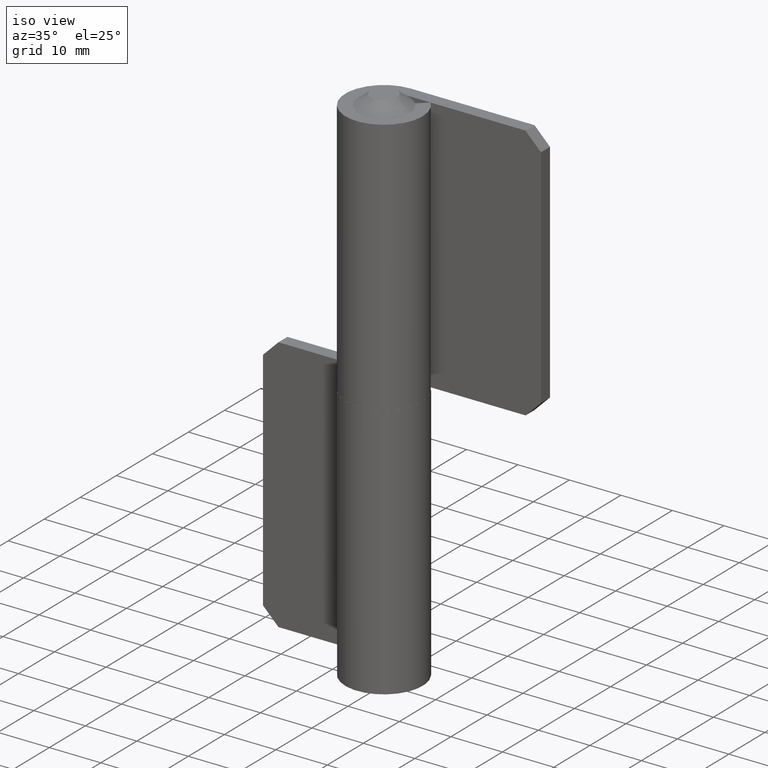
[diagram: clean part render]
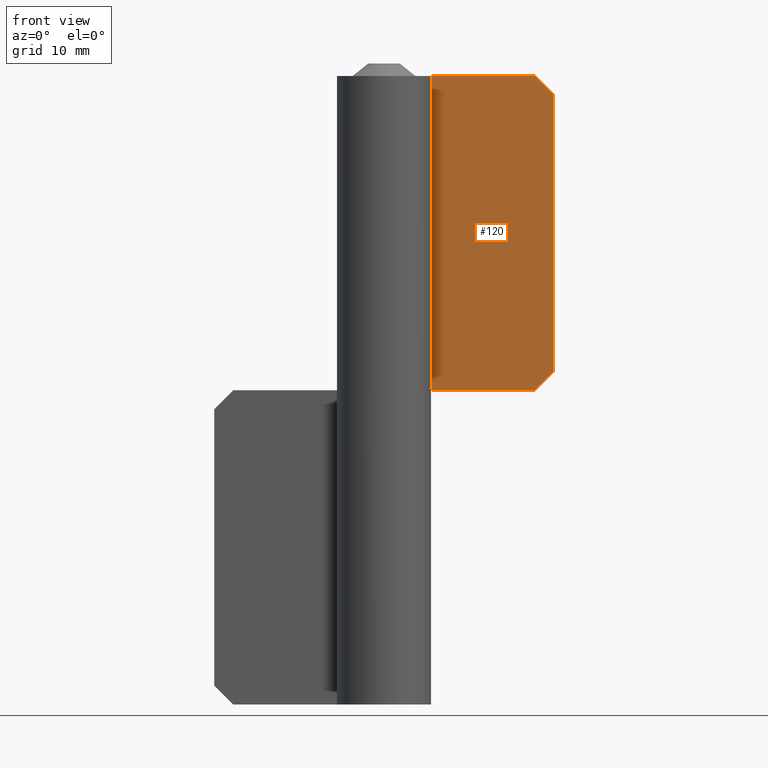
[diagram: tour spotlight — one face highlighted and labeled with its STEP entity id]
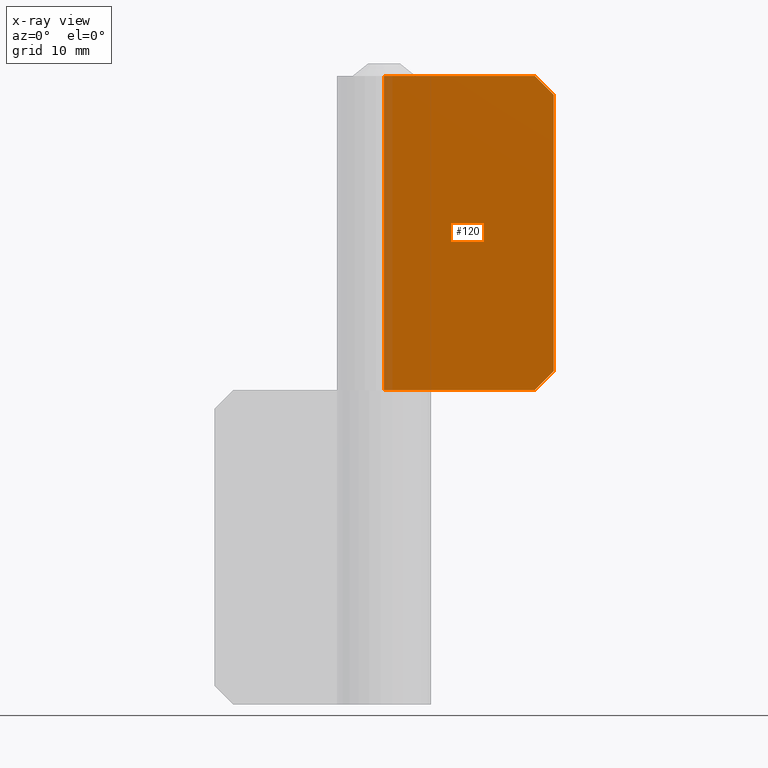
[diagram: x-ray of the same camera — body ghosted, this tour face saturated]
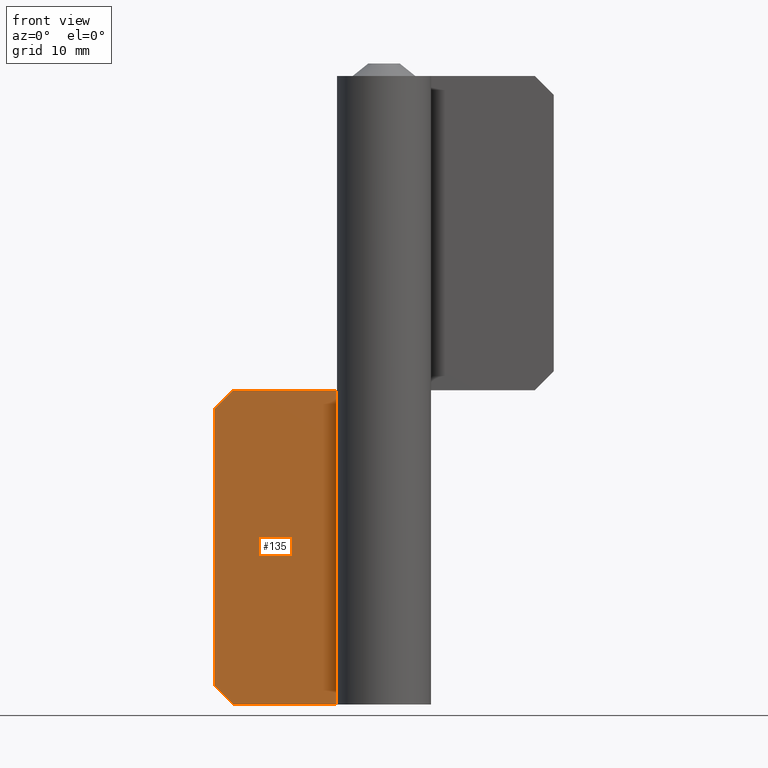
[diagram: tour spotlight — one face highlighted and labeled with its STEP entity id]
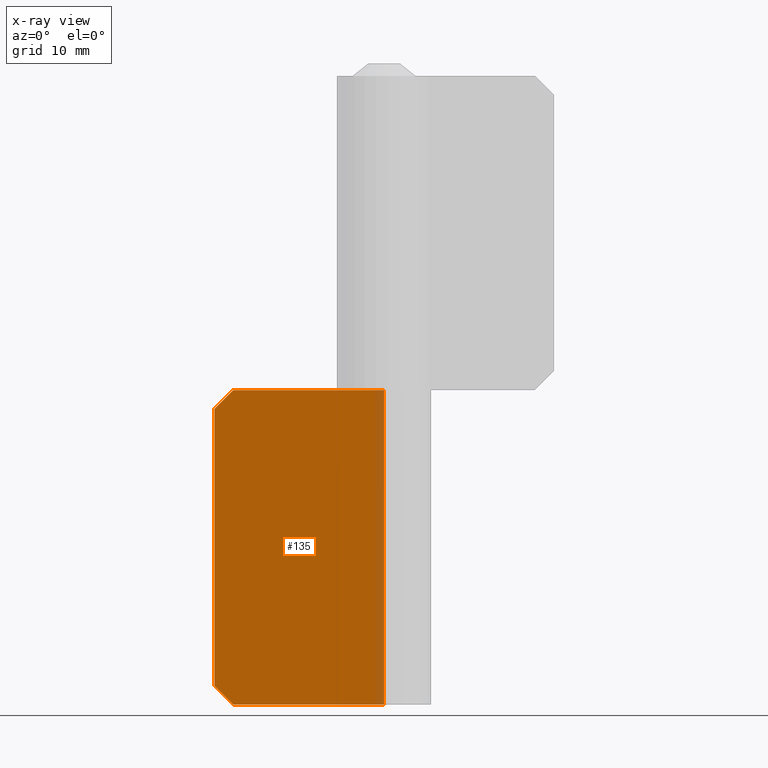
[diagram: x-ray of the same camera — body ghosted, this tour face saturated]
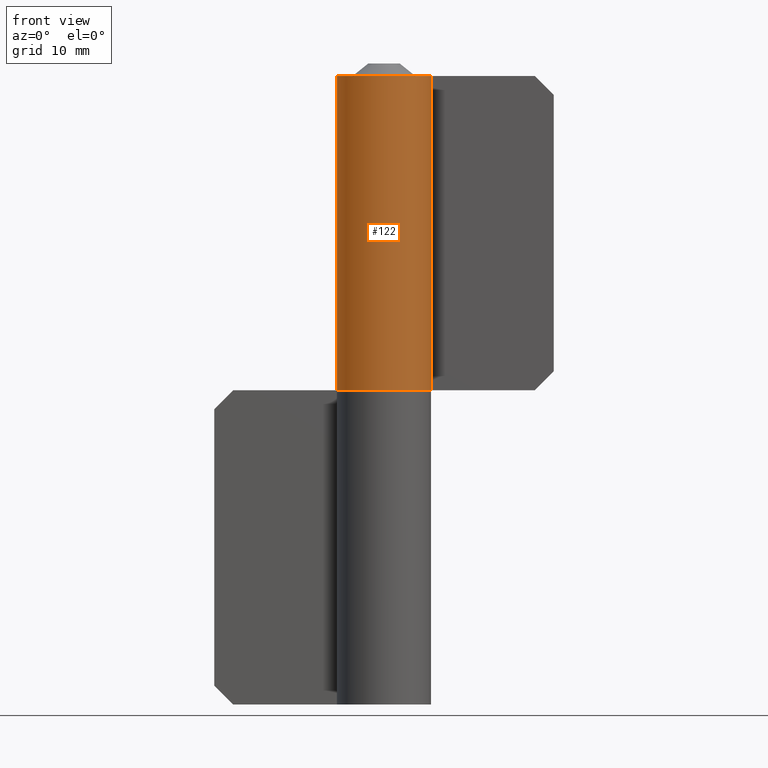
[diagram: tour spotlight — one face highlighted and labeled with its STEP entity id]
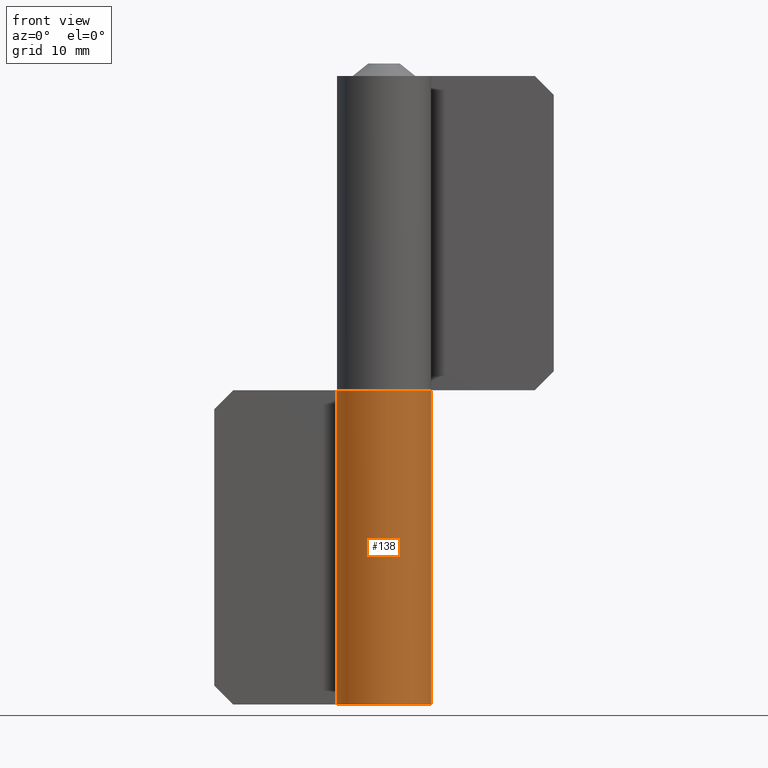
[diagram: tour spotlight — one face highlighted and labeled with its STEP entity id]
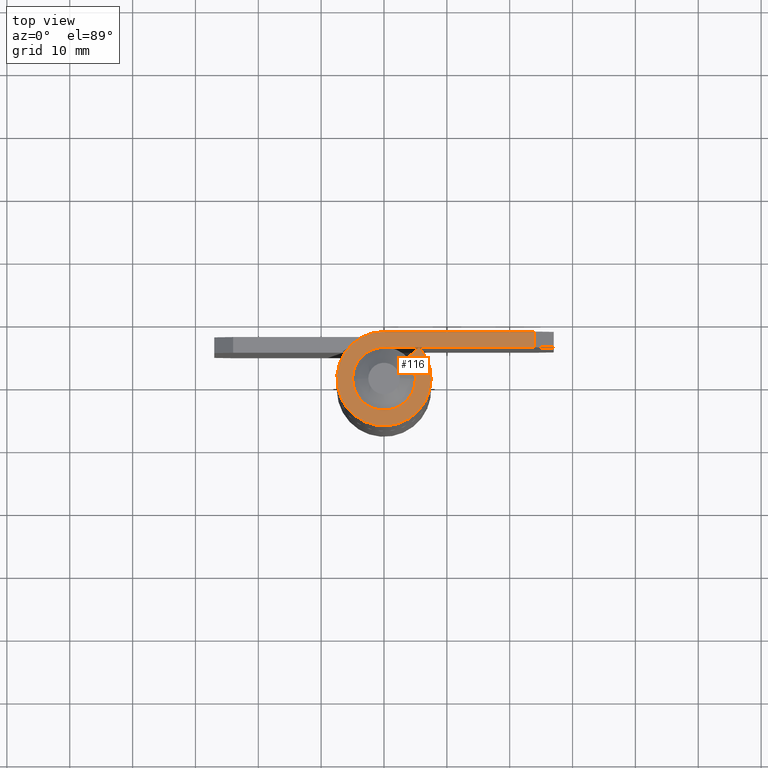
[diagram: tour spotlight — one face highlighted and labeled with its STEP entity id]
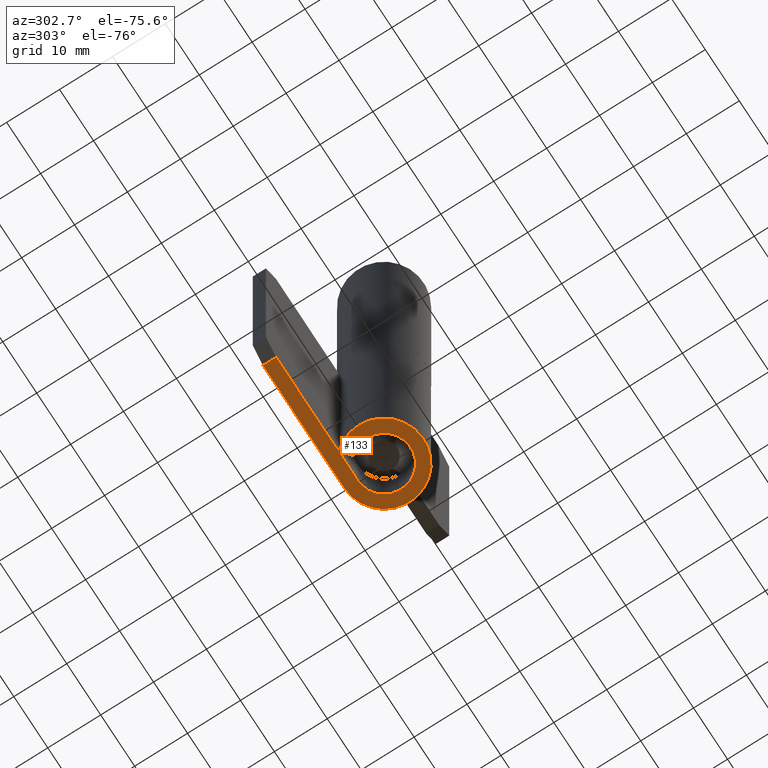
[diagram: tour spotlight — one face highlighted and labeled with its STEP entity id]
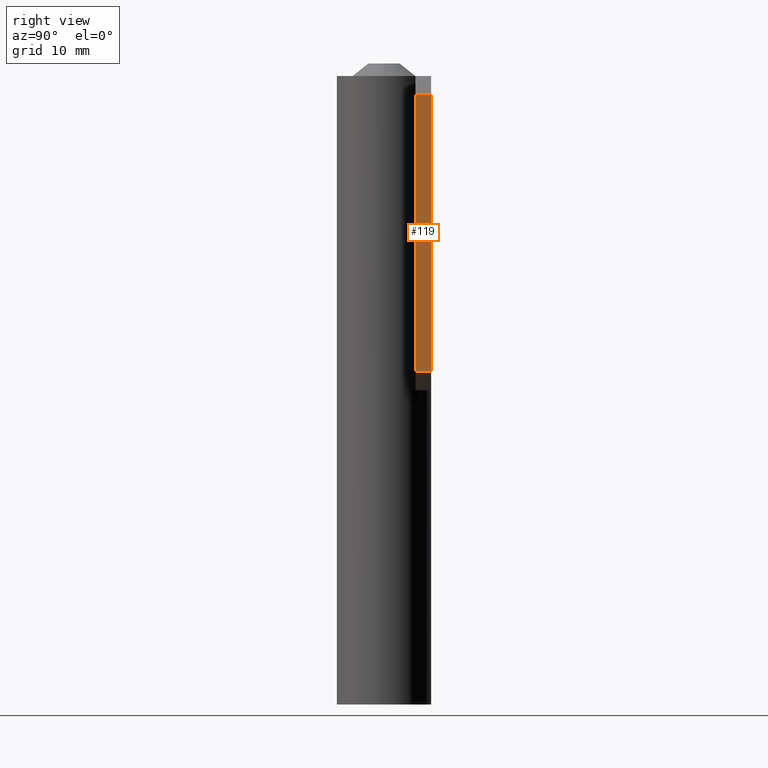
[diagram: tour spotlight — one face highlighted and labeled with its STEP entity id]
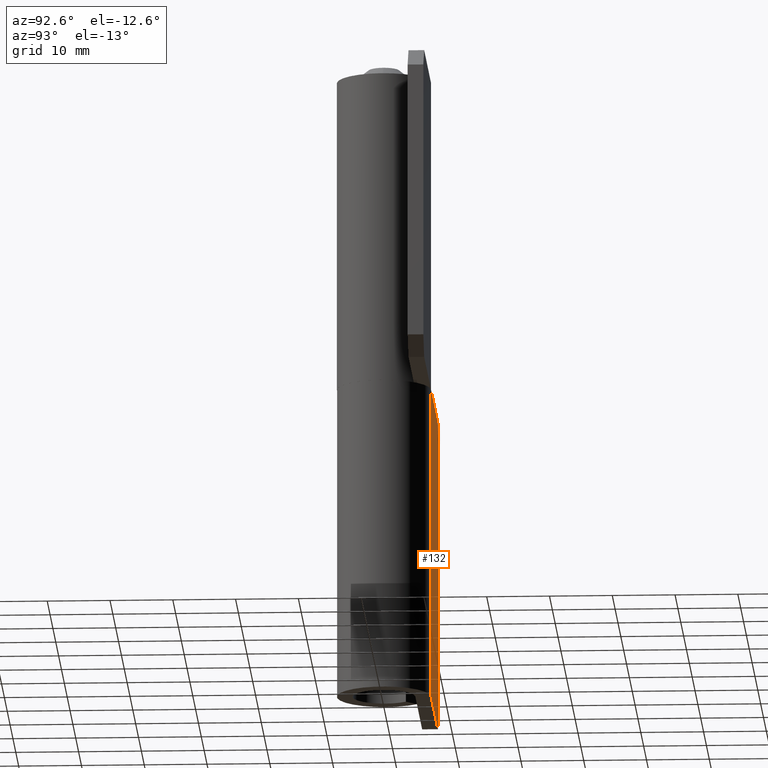
[diagram: tour spotlight — one face highlighted and labeled with its STEP entity id]
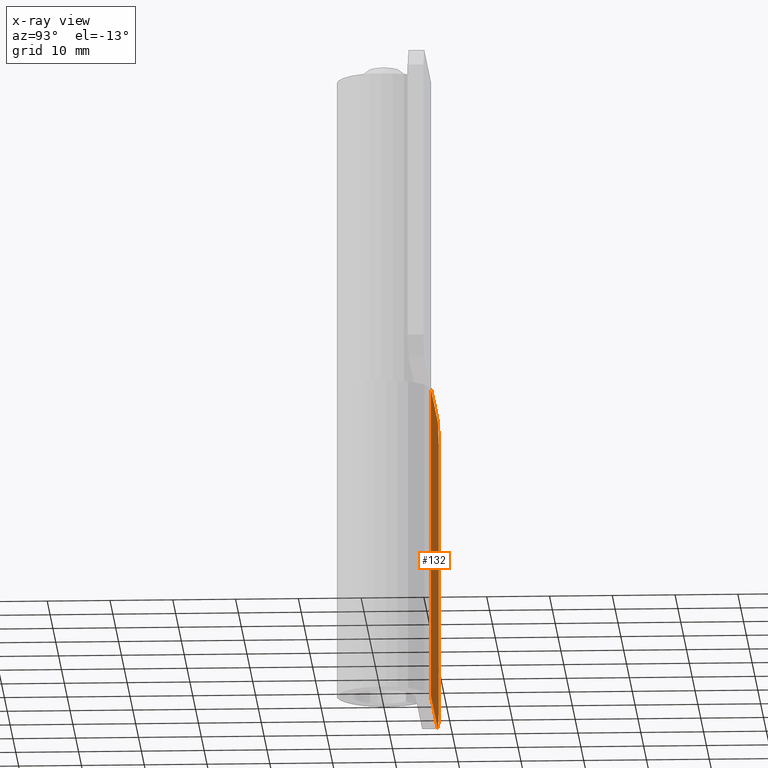
[diagram: x-ray of the same camera — body ghosted, this tour face saturated]
A machine part: a face-by-face anatomy tour. The part has 27 B-rep faces; the first image is the clean iso view, then the 8 largest visible faces are spotlighted one at a time (largest first), each with its STEP entity span.

Face 1 — front view, entity #120. An x-ray twin of the same camera follows (body ghosted, this face saturated) — the face is partly hidden behind the body. In plain terms, the highlighted planar face has unit normal (0, 1, 0).
Definition (entity closure, byte-faithful):
#120=ADVANCED_FACE('',(#220),#219,.F.);
#219=PLANE('',#452);
#220=FACE_OUTER_BOUND('',#453,.T.);
#449=CARTESIAN_POINT('',(-2.70000000000E+000,5.00000000000E+000,-5.00000000000E+000));
#450=DIRECTION('',(0.00000000000E+000,1.00000000000E+000,0.00000000000E+000));
#451=DIRECTION('',(0.00000000000E+000,-0.00000000000E+000,1.00000000000E+000));
#452=AXIS2_PLACEMENT_3D('',#449,#450,#451);
#453=EDGE_LOOP('',(#606,#607,#608,#609,#610,#611));
#606=ORIENTED_EDGE('',*,*,#726,.T.);
#607=ORIENTED_EDGE('',*,*,#700,.T.);
#608=ORIENTED_EDGE('',*,*,#710,.T.);
#609=ORIENTED_EDGE('',*,*,#727,.F.);
#610=ORIENTED_EDGE('',*,*,#718,.F.);
#611=ORIENTED_EDGE('',*,*,#704,.T.);
#700=EDGE_CURVE('',#778,#771,#779,.T.);
#704=EDGE_CURVE('',#806,#799,#807,.T.);
#710=EDGE_CURVE('',#771,#847,#848,.T.);
#718=EDGE_CURVE('',#806,#902,#903,.T.);
#726=EDGE_CURVE('',#799,#778,#955,.T.);
#727=EDGE_CURVE('',#902,#847,#961,.T.);
#771=VERTEX_POINT('',#1200);
#778=VERTEX_POINT('',#1204);
#779=LINE('',#1205,#1206);
#799=VERTEX_POINT('',#1216);
#806=VERTEX_POINT('',#1220);
#807=LINE('',#1221,#1222);
#847=VERTEX_POINT('',#1247);
#848=LINE('',#1248,#1249);
#902=VERTEX_POINT('',#1282);
#903=LINE('',#1283,#1284);
#955=LINE('',#1315,#1316);
#961=LINE('',#1318,#1319);
#1200=CARTESIAN_POINT('',(2.40000000000E+001,5.00000000000E+000,5.00000000000E+001));
#1204=CARTESIAN_POINT('',(2.70000000000E+001,5.00000000000E+000,4.70000000000E+001));
#1205=CARTESIAN_POINT('',(2.70000000000E+001,5.00000000000E+000,4.70000000000E+001));
#1206=VECTOR('',#1207,4.24264068712E+000);
#1207=DIRECTION('',(-7.07106781187E-001,0.00000000000E+000,7.07106781187E-001));
#1216=CARTESIAN_POINT('',(2.70000000000E+001,5.00000000000E+000,3.00000000000E+000));
#1220=CARTESIAN_POINT('',(2.40000000000E+001,5.00000000000E+000,0.00000000000E+000));
#1221=CARTESIAN_POINT('',(2.40000000000E+001,5.00000000000E+000,0.00000000000E+000));
#1222=VECTOR('',#1223,4.24264068712E+000);
#1223=DIRECTION('',(7.07106781187E-001,0.00000000000E+000,7.07106781187E-001));
#1247=CARTESIAN_POINT('',(0.00000000000E+000,5.00000000000E+000,5.00000000000E+001));
#1248=CARTESIAN_POINT('',(2.40000000000E+001,5.00000000000E+000,5.00000000000E+001));
#1249=VECTOR('',#1250,2.40000000000E+001);
#1250=DIRECTION('',(-1.00000000000E+000,0.00000000000E+000,0.00000000000E+000));
#1282=CARTESIAN_POINT('',(0.00000000000E+000,5.00000000000E+000,0.00000000000E+000));
#1283=CARTESIAN_POINT('',(2.40000000000E+001,5.00000000000E+000,0.00000000000E+000));
#1284=VECTOR('',#1285,2.40000000000E+001);
#1285=DIRECTION('',(-1.00000000000E+000,0.00000000000E+000,0.00000000000E+000));
#1315=CARTESIAN_POINT('',(2.70000000000E+001,5.00000000000E+000,3.00000000000E+000));
#1316=VECTOR('',#1317,4.40000000000E+001);
#1317=DIRECTION('',(0.00000000000E+000,0.00000000000E+000,1.00000000000E+000));
#1318=CARTESIAN_POINT('',(0.00000000000E+000,5.00000000000E+000,0.00000000000E+000));
#1319=VECTOR('',#1320,5.00000000000E+001);
#1320=DIRECTION('',(0.00000000000E+000,0.00000000000E+000,1.00000000000E+000));

Face 2 — front view, entity #135. An x-ray twin of the same camera follows (body ghosted, this face saturated) — the face is partly hidden behind the body. In plain terms, the highlighted planar face has unit normal (0, 1, 0).
Definition (entity closure, byte-faithful):
#135=ADVANCED_FACE('',(#370),#369,.F.);
#369=PLANE('',#551);
#370=FACE_OUTER_BOUND('',#552,.T.);
#548=CARTESIAN_POINT('',(-2.97000000000E+001,5.00000000000E+000,-5.50000000000E+001));
#549=DIRECTION('',(0.00000000000E+000,1.00000000000E+000,0.00000000000E+000));
#550=DIRECTION('',(0.00000000000E+000,-0.00000000000E+000,1.00000000000E+000));
#551=AXIS2_PLACEMENT_3D('',#548,#549,#550);
#552=EDGE_LOOP('',(#680,#681,#682,#683,#684,#685));
#680=ORIENTED_EDGE('',*,*,#748,.F.);
#681=ORIENTED_EDGE('',*,*,#743,.T.);
#682=ORIENTED_EDGE('',*,*,#752,.F.);
#683=ORIENTED_EDGE('',*,*,#760,.T.);
#684=ORIENTED_EDGE('',*,*,#756,.T.);
#685=ORIENTED_EDGE('',*,*,#739,.T.);
#739=EDGE_CURVE('',#1035,#1036,#1037,.T.);
#743=EDGE_CURVE('',#1063,#1064,#1065,.T.);
#748=EDGE_CURVE('',#1063,#1036,#1097,.T.);
#752=EDGE_CURVE('',#1123,#1064,#1124,.T.);
#756=EDGE_CURVE('',#1150,#1035,#1151,.T.);
#760=EDGE_CURVE('',#1123,#1150,#1177,.T.);
#1035=VERTEX_POINT('',#1353);
#1036=VERTEX_POINT('',#1354);
#1037=LINE('',#1355,#1356);
#1063=VERTEX_POINT('',#1369);
#1064=VERTEX_POINT('',#1370);
#1065=LINE('',#1371,#1372);
#1097=LINE('',#1388,#1389);
#1123=VERTEX_POINT('',#1402);
#1124=LINE('',#1403,#1404);
#1150=VERTEX_POINT('',#1419);
#1151=LINE('',#1420,#1421);
#1177=LINE('',#1436,#1437);
#1353=CARTESIAN_POINT('',(-2.40000000000E+001,5.00000000000E+000,-1.42108547152E-014));
#1354=CARTESIAN_POINT('',(-2.70000000000E+001,5.00000000000E+000,-3.00000000000E+000));
#1355=CARTESIAN_POINT('',(-2.40000000000E+001,5.00000000000E+000,-1.46549439251E-014));
#1356=VECTOR('',#1357,4.24264068712E+000);
#1357=DIRECTION('',(-7.07106781187E-001,0.00000000000E+000,-7.07106781187E-001));
#1369=CARTESIAN_POINT('',(-2.70000000000E+001,5.00000000000E+000,-4.70000000000E+001));
#1370=CARTESIAN_POINT('',(-2.40000000000E+001,5.00000000000E+000,-5.00000000000E+001));
#1371=CARTESIAN_POINT('',(-2.70000000000E+001,5.00000000000E+000,-4.70000000000E+001));
#1372=VECTOR('',#1373,4.24264068712E+000);
#1373=DIRECTION('',(7.07106781187E-001,0.00000000000E+000,-7.07106781187E-001));
#1388=CARTESIAN_POINT('',(-2.70000000000E+001,5.00000000000E+000,-4.70000000000E+001));
#1389=VECTOR('',#1390,4.40000000000E+001);
#1390=DIRECTION('',(0.00000000000E+000,0.00000000000E+000,1.00000000000E+000));
#1402=CARTESIAN_POINT('',(3.06161699787E-016,5.00000000000E+000,-5.00000000000E+001));
#1403=CARTESIAN_POINT('',(3.06161699787E-016,5.00000000000E+000,-5.00000000000E+001));
#1404=VECTOR('',#1405,2.40000000000E+001);
#1405=DIRECTION('',(-1.00000000000E+000,0.00000000000E+000,0.00000000000E+000));
#1419=CARTESIAN_POINT('',(3.06161699787E-016,5.00000000000E+000,0.00000000000E+000));
#1420=CARTESIAN_POINT('',(3.06161699787E-016,5.00000000000E+000,-1.42108547152E-014));
#1421=VECTOR('',#1422,2.40000000000E+001);
#1422=DIRECTION('',(-1.00000000000E+000,0.00000000000E+000,0.00000000000E+000));
#1436=CARTESIAN_POINT('',(3.06161699787E-016,5.00000000000E+000,-5.00000000000E+001));
#1437=VECTOR('',#1438,5.00000000000E+001);
#1438=DIRECTION('',(0.00000000000E+000,0.00000000000E+000,1.00000000000E+000));

Face 3 — front view, entity #122. In plain terms, the highlighted cylindrical surface (partial cylindrical patch) has radius 7.5 mm, axis along (0, 0, -1).
Definition (entity closure, byte-faithful):
#122=ADVANCED_FACE('',(#240),#239,.T.);
#239=CYLINDRICAL_SURFACE('',#462,7.50000000000E+000);
#240=FACE_OUTER_BOUND('',#463,.T.);
#459=CARTESIAN_POINT('',(0.00000000000E+000,0.00000000000E+000,-9.50000000000E+002));
#460=DIRECTION('',(-0.00000000000E+000,0.00000000000E+000,-1.00000000000E+000));
#461=DIRECTION('',(4.06736643076E-001,9.13545457643E-001,0.00000000000E+000));
#462=AXIS2_PLACEMENT_3D('',#459,#460,#461);
#463=EDGE_LOOP('',(#616,#617,#618,#619));
#616=ORIENTED_EDGE('',*,*,#712,.F.);
#617=ORIENTED_EDGE('',*,*,#725,.F.);
#618=ORIENTED_EDGE('',*,*,#723,.T.);
#619=ORIENTED_EDGE('',*,*,#728,.T.);
#712=EDGE_CURVE('',#854,#861,#862,.T.);
#723=EDGE_CURVE('',#895,#930,#937,.T.);
#725=EDGE_CURVE('',#895,#854,#949,.T.);
#728=EDGE_CURVE('',#930,#861,#967,.T.);
#854=VERTEX_POINT('',#1251);
#861=VERTEX_POINT('',#1255);
#862=CIRCLE('',#1259,7.50000000000E+000);
#895=VERTEX_POINT('',#1278);
#930=VERTEX_POINT('',#1301);
#937=CIRCLE('',#1308,7.50000000000E+000);
#949=LINE('',#1312,#1313);
#967=LINE('',#1321,#1322);
#1251=CARTESIAN_POINT('',(-1.37772764904E-015,7.50000000000E+000,5.00000000000E+001));
#1255=CARTESIAN_POINT('',(5.59104252323E+000,4.99902425514E+000,5.00000000000E+001));
#1256=CARTESIAN_POINT('',(0.00000000000E+000,0.00000000000E+000,5.00000000000E+001));
#1257=DIRECTION('',(0.00000000000E+000,0.00000000000E+000,1.00000000000E+000));
#1258=DIRECTION('',(1.83690953073E-016,1.00000000000E+000,-0.00000000000E+000));
#1259=AXIS2_PLACEMENT_3D('',#1256,#1257,#1258);
#1278=CARTESIAN_POINT('',(-1.37772764904E-015,7.50000000000E+000,0.00000000000E+000));
#1301=CARTESIAN_POINT('',(5.59104252323E+000,4.99902425514E+000,0.00000000000E+000));
#1305=CARTESIAN_POINT('',(0.00000000000E+000,0.00000000000E+000,0.00000000000E+000));
#1306=DIRECTION('',(0.00000000000E+000,0.00000000000E+000,1.00000000000E+000));
#1307=DIRECTION('',(1.83690953073E-016,1.00000000000E+000,-0.00000000000E+000));
#1308=AXIS2_PLACEMENT_3D('',#1305,#1306,#1307);
#1312=CARTESIAN_POINT('',(-1.37772764904E-015,7.50000000000E+000,0.00000000000E+000));
#1313=VECTOR('',#1314,5.00000000000E+001);
#1314=DIRECTION('',(0.00000000000E+000,0.00000000000E+000,1.00000000000E+000));
#1321=CARTESIAN_POINT('',(5.59104252323E+000,4.99902425514E+000,0.00000000000E+000));
#1322=VECTOR('',#1323,5.00000000000E+001);
#1323=DIRECTION('',(0.00000000000E+000,0.00000000000E+000,1.00000000000E+000));

Face 4 — front view, entity #138. In plain terms, the highlighted cylindrical surface (partial cylindrical patch) has radius 7.5 mm, axis along (0, 0, -1).
Definition (entity closure, byte-faithful):
#138=ADVANCED_FACE('',(#400),#399,.T.);
#399=CYLINDRICAL_SURFACE('',#566,7.50000000000E+000);
#400=FACE_OUTER_BOUND('',#567,.T.);
#563=CARTESIAN_POINT('',(0.00000000000E+000,0.00000000000E+000,-1.00000000000E+003));
#564=DIRECTION('',(-0.00000000000E+000,0.00000000000E+000,-1.00000000000E+000));
#565=DIRECTION('',(-4.14693242656E-001,9.09961270877E-001,0.00000000000E+000));
#566=AXIS2_PLACEMENT_3D('',#563,#564,#565);
#567=EDGE_LOOP('',(#694,#695,#696,#697));
#694=ORIENTED_EDGE('',*,*,#759,.F.);
#695=ORIENTED_EDGE('',*,*,#762,.F.);
#696=ORIENTED_EDGE('',*,*,#753,.T.);
#697=ORIENTED_EDGE('',*,*,#751,.T.);
#751=EDGE_CURVE('',#1103,#1110,#1117,.T.);
#753=EDGE_CURVE('',#1130,#1103,#1131,.T.);
#759=EDGE_CURVE('',#1164,#1110,#1171,.T.);
#762=EDGE_CURVE('',#1130,#1164,#1189,.T.);
#1103=VERTEX_POINT('',#1391);
#1110=VERTEX_POINT('',#1395);
#1117=LINE('',#1399,#1400);
#1130=VERTEX_POINT('',#1406);
#1131=CIRCLE('',#1410,7.50000000000E+000);
#1164=VERTEX_POINT('',#1428);
#1171=CIRCLE('',#1435,7.50000000000E+000);
#1189=LINE('',#1442,#1443);
#1391=CARTESIAN_POINT('',(0.00000000000E+000,7.50000000000E+000,-5.00000000000E+001));
#1395=CARTESIAN_POINT('',(0.00000000000E+000,7.50000000000E+000,0.00000000000E+000));
#1399=CARTESIAN_POINT('',(0.00000000000E+000,7.50000000000E+000,-5.00000000000E+001));
#1400=VECTOR('',#1401,5.00000000000E+001);
#1401=DIRECTION('',(0.00000000000E+000,0.00000000000E+000,1.00000000000E+000));
#1406=CARTESIAN_POINT('',(-5.59104252323E+000,4.99902425514E+000,-5.00000000000E+001));
#1407=CARTESIAN_POINT('',(0.00000000000E+000,0.00000000000E+000,-5.00000000000E+001));
#1408=DIRECTION('',(0.00000000000E+000,-0.00000000000E+000,1.00000000000E+000));
#1409=DIRECTION('',(-1.83690953073E-016,1.00000000000E+000,0.00000000000E+000));
#1410=AXIS2_PLACEMENT_3D('',#1407,#1408,#1409);
#1428=CARTESIAN_POINT('',(-5.59104252323E+000,4.99902425514E+000,0.00000000000E+000));
#1432=CARTESIAN_POINT('',(0.00000000000E+000,0.00000000000E+000,0.00000000000E+000));
#1433=DIRECTION('',(0.00000000000E+000,-0.00000000000E+000,1.00000000000E+000));
#1434=DIRECTION('',(-1.83690953073E-016,1.00000000000E+000,0.00000000000E+000));
#1435=AXIS2_PLACEMENT_3D('',#1432,#1433,#1434);
#1442=CARTESIAN_POINT('',(-5.59104252323E+000,4.99902425514E+000,-5.00000000000E+001));
#1443=VECTOR('',#1444,5.00000000000E+001);
#1444=DIRECTION('',(0.00000000000E+000,0.00000000000E+000,1.00000000000E+000));

Face 5 — top view, entity #116. In plain terms, the highlighted planar face has unit normal (0, 0, 1).
Definition (entity closure, byte-faithful):
#116=ADVANCED_FACE('',(#180),#179,.T.);
#179=PLANE('',#432);
#180=FACE_OUTER_BOUND('',#433,.T.);
#429=CARTESIAN_POINT('',(-1.29468851000E+001,-1.29731095773E+001,5.00000000000E+001));
#430=DIRECTION('',(0.00000000000E+000,0.00000000000E+000,1.00000000000E+000));
#431=DIRECTION('',(1.00000000000E+000,0.00000000000E+000,-0.00000000000E+000));
#432=AXIS2_PLACEMENT_3D('',#429,#430,#431);
#433=EDGE_LOOP('',(#580,#581,#582,#583,#584,#585,#586,#587));
#580=ORIENTED_EDGE('',*,*,#710,.F.);
#581=ORIENTED_EDGE('',*,*,#699,.T.);
#582=ORIENTED_EDGE('',*,*,#711,.F.);
#583=ORIENTED_EDGE('',*,*,#712,.T.);
#584=ORIENTED_EDGE('',*,*,#713,.F.);
#585=ORIENTED_EDGE('',*,*,#714,.F.);
#586=ORIENTED_EDGE('',*,*,#715,.F.);
#587=ORIENTED_EDGE('',*,*,#716,.F.);
#699=EDGE_CURVE('',#771,#763,#772,.T.);
#710=EDGE_CURVE('',#771,#847,#848,.T.);
#711=EDGE_CURVE('',#854,#763,#855,.T.);
#712=EDGE_CURVE('',#854,#861,#862,.T.);
#713=EDGE_CURVE('',#868,#861,#869,.T.);
#714=EDGE_CURVE('',#875,#868,#876,.T.);
#715=EDGE_CURVE('',#882,#875,#883,.T.);
#716=EDGE_CURVE('',#847,#882,#889,.T.);
#763=VERTEX_POINT('',#1195);
#771=VERTEX_POINT('',#1200);
#772=LINE('',#1201,#1202);
#847=VERTEX_POINT('',#1247);
#848=LINE('',#1248,#1249);
#854=VERTEX_POINT('',#1251);
#855=LINE('',#1252,#1253);
#861=VERTEX_POINT('',#1255);
#862=CIRCLE('',#1259,7.50000000000E+000);
#868=VERTEX_POINT('',#1260);
#869=LINE('',#1261,#1262);
#875=VERTEX_POINT('',#1264);
#876=CIRCLE('',#1268,5.00000000000E+000);
#882=VERTEX_POINT('',#1269);
#883=CIRCLE('',#1273,5.00000000000E+000);
#889=CIRCLE('',#1277,5.00000000000E+000);
#1195=CARTESIAN_POINT('',(2.40000000000E+001,7.50000000000E+000,5.00000000000E+001));
#1200=CARTESIAN_POINT('',(2.40000000000E+001,5.00000000000E+000,5.00000000000E+001));
#1201=CARTESIAN_POINT('',(2.40000000000E+001,5.00000000000E+000,5.00000000000E+001));
#1202=VECTOR('',#1203,2.50000000000E+000);
#1203=DIRECTION('',(0.00000000000E+000,1.00000000000E+000,0.00000000000E+000));
#1247=CARTESIAN_POINT('',(0.00000000000E+000,5.00000000000E+000,5.00000000000E+001));
#1248=CARTESIAN_POINT('',(2.40000000000E+001,5.00000000000E+000,5.00000000000E+001));
#1249=VECTOR('',#1250,2.40000000000E+001);
#1250=DIRECTION('',(-1.00000000000E+000,0.00000000000E+000,0.00000000000E+000));
#1251=CARTESIAN_POINT('',(-1.37772764904E-015,7.50000000000E+000,5.00000000000E+001));
#1252=CARTESIAN_POINT('',(-1.37772764904E-015,7.50000000000E+000,5.00000000000E+001));
#1253=VECTOR('',#1254,2.40000000000E+001);
#1254=DIRECTION('',(1.00000000000E+000,0.00000000000E+000,0.00000000000E+000));
#1255=CARTESIAN_POINT('',(5.59104252323E+000,4.99902425514E+000,5.00000000000E+001));
#1256=CARTESIAN_POINT('',(0.00000000000E+000,0.00000000000E+000,5.00000000000E+001));
#1257=DIRECTION('',(0.00000000000E+000,0.00000000000E+000,1.00000000000E+000));
#1258=DIRECTION('',(1.83690953073E-016,1.00000000000E+000,-0.00000000000E+000));
#1259=AXIS2_PLACEMENT_3D('',#1256,#1257,#1258);
#1260=CARTESIAN_POINT('',(3.72736168215E+000,3.33268283676E+000,5.00000000000E+001));
#1261=CARTESIAN_POINT('',(3.72736168215E+000,3.33268283676E+000,5.00000000000E+001));
#1262=VECTOR('',#1263,2.50000000000E+000);
#1263=DIRECTION('',(7.45472336430E-001,6.66536567352E-001,0.00000000000E+000));
#1264=CARTESIAN_POINT('',(5.00000000000E+000,-1.95942406596E-008,5.00000000000E+001));
#1265=CARTESIAN_POINT('',(0.00000000000E+000,0.00000000000E+000,5.00000000000E+001));
#1266=DIRECTION('',(0.00000000000E+000,0.00000000000E+000,1.00000000000E+000));
#1267=DIRECTION('',(1.83690953073E-016,1.00000000000E+000,-0.00000000000E+000));
#1268=AXIS2_PLACEMENT_3D('',#1265,#1266,#1267);
#1269=CARTESIAN_POINT('',(-4.99999997307E+000,-5.18931670672E-004,5.00000000000E+001));
#1270=CARTESIAN_POINT('',(0.00000000000E+000,0.00000000000E+000,5.00000000000E+001));
#1271=DIRECTION('',(0.00000000000E+000,0.00000000000E+000,1.00000000000E+000));
#1272=DIRECTION('',(1.83690953073E-016,1.00000000000E+000,-0.00000000000E+000));
#1273=AXIS2_PLACEMENT_3D('',#1270,#1271,#1272);
#1274=CARTESIAN_POINT('',(0.00000000000E+000,0.00000000000E+000,5.00000000000E+001));
#1275=DIRECTION('',(0.00000000000E+000,0.00000000000E+000,1.00000000000E+000));
#1276=DIRECTION('',(1.83690953073E-016,1.00000000000E+000,-0.00000000000E+000));
#1277=AXIS2_PLACEMENT_3D('',#1274,#1275,#1276);

Face 6 — auxiliary view, entity #133. In plain terms, the highlighted planar face has unit normal (0, 0, -1).
Definition (entity closure, byte-faithful):
#133=ADVANCED_FACE('',(#350),#349,.T.);
#349=PLANE('',#541);
#350=FACE_OUTER_BOUND('',#542,.T.);
#538=CARTESIAN_POINT('',(1.29468851000E+001,-1.29731095773E+001,-5.00000000000E+001));
#539=DIRECTION('',(-0.00000000000E+000,0.00000000000E+000,-1.00000000000E+000));
#540=DIRECTION('',(-1.00000000000E+000,0.00000000000E+000,0.00000000000E+000));
#541=AXIS2_PLACEMENT_3D('',#538,#539,#540);
#542=EDGE_LOOP('',(#668,#669,#670,#671,#672,#673));
#668=ORIENTED_EDGE('',*,*,#752,.T.);
#669=ORIENTED_EDGE('',*,*,#746,.T.);
#670=ORIENTED_EDGE('',*,*,#749,.T.);
#671=ORIENTED_EDGE('',*,*,#753,.F.);
#672=ORIENTED_EDGE('',*,*,#754,.T.);
#673=ORIENTED_EDGE('',*,*,#755,.T.);
#746=EDGE_CURVE('',#1064,#1078,#1085,.T.);
#749=EDGE_CURVE('',#1078,#1103,#1104,.T.);
#752=EDGE_CURVE('',#1123,#1064,#1124,.T.);
#753=EDGE_CURVE('',#1130,#1103,#1131,.T.);
#754=EDGE_CURVE('',#1130,#1137,#1138,.T.);
#755=EDGE_CURVE('',#1137,#1123,#1144,.T.);
#1064=VERTEX_POINT('',#1370);
#1078=VERTEX_POINT('',#1378);
#1085=LINE('',#1382,#1383);
#1103=VERTEX_POINT('',#1391);
#1104=LINE('',#1392,#1393);
#1123=VERTEX_POINT('',#1402);
#1124=LINE('',#1403,#1404);
#1130=VERTEX_POINT('',#1406);
#1131=CIRCLE('',#1410,7.50000000000E+000);
#1137=VERTEX_POINT('',#1411);
#1138=LINE('',#1412,#1413);
#1144=CIRCLE('',#1418,5.00000000000E+000);
#1370=CARTESIAN_POINT('',(-2.40000000000E+001,5.00000000000E+000,-5.00000000000E+001));
#1378=CARTESIAN_POINT('',(-2.40000000000E+001,7.50000000000E+000,-5.00000000000E+001));
#1382=CARTESIAN_POINT('',(-2.40000000000E+001,5.00000000000E+000,-5.00000000000E+001));
#1383=VECTOR('',#1384,2.50000000000E+000);
#1384=DIRECTION('',(0.00000000000E+000,1.00000000000E+000,0.00000000000E+000));
#1391=CARTESIAN_POINT('',(0.00000000000E+000,7.50000000000E+000,-5.00000000000E+001));
#1392=CARTESIAN_POINT('',(-2.40000000000E+001,7.50000000000E+000,-5.00000000000E+001));
#1393=VECTOR('',#1394,2.40000000000E+001);
#1394=DIRECTION('',(1.00000000000E+000,0.00000000000E+000,0.00000000000E+000));
#1402=CARTESIAN_POINT('',(3.06161699787E-016,5.00000000000E+000,-5.00000000000E+001));
#1403=CARTESIAN_POINT('',(3.06161699787E-016,5.00000000000E+000,-5.00000000000E+001));
#1404=VECTOR('',#1405,2.40000000000E+001);
#1405=DIRECTION('',(-1.00000000000E+000,0.00000000000E+000,0.00000000000E+000));
#1406=CARTESIAN_POINT('',(-5.59104252323E+000,4.99902425514E+000,-5.00000000000E+001));
#1407=CARTESIAN_POINT('',(0.00000000000E+000,0.00000000000E+000,-5.00000000000E+001));
#1408=DIRECTION('',(0.00000000000E+000,-0.00000000000E+000,1.00000000000E+000));
#1409=DIRECTION('',(-1.83690953073E-016,1.00000000000E+000,0.00000000000E+000));
#1410=AXIS2_PLACEMENT_3D('',#1407,#1408,#1409);
#1411=CARTESIAN_POINT('',(-3.72736168215E+000,3.33268283676E+000,-5.00000000000E+001));
#1412=CARTESIAN_POINT('',(-5.59104252323E+000,4.99902425514E+000,-5.00000000000E+001));
#1413=VECTOR('',#1414,2.50000000000E+000);
#1414=DIRECTION('',(7.45472336430E-001,-6.66536567352E-001,0.00000000000E+000));
#1415=CARTESIAN_POINT('',(0.00000000000E+000,0.00000000000E+000,-5.00000000000E+001));
#1416=DIRECTION('',(0.00000000000E+000,-0.00000000000E+000,1.00000000000E+000));
#1417=DIRECTION('',(-1.83690953073E-016,1.00000000000E+000,0.00000000000E+000));
#1418=AXIS2_PLACEMENT_3D('',#1415,#1416,#1417);

Face 7 — right view, entity #119. In plain terms, the highlighted planar face has unit normal (-1, 0, 0).
Definition (entity closure, byte-faithful):
#119=ADVANCED_FACE('',(#210),#209,.F.);
#209=PLANE('',#447);
#210=FACE_OUTER_BOUND('',#448,.T.);
#444=CARTESIAN_POINT('',(2.70000000000E+001,4.75000000000E+000,-1.40000000000E+000));
#445=DIRECTION('',(-1.00000000000E+000,0.00000000000E+000,0.00000000000E+000));
#446=DIRECTION('',(0.00000000000E+000,0.00000000000E+000,1.00000000000E+000));
#447=AXIS2_PLACEMENT_3D('',#444,#445,#446);
#448=EDGE_LOOP('',(#602,#603,#604,#605));
#602=ORIENTED_EDGE('',*,*,#724,.T.);
#603=ORIENTED_EDGE('',*,*,#701,.T.);
#604=ORIENTED_EDGE('',*,*,#726,.F.);
#605=ORIENTED_EDGE('',*,*,#703,.T.);
#701=EDGE_CURVE('',#764,#778,#785,.T.);
#703=EDGE_CURVE('',#799,#791,#800,.T.);
#724=EDGE_CURVE('',#791,#764,#943,.T.);
#726=EDGE_CURVE('',#799,#778,#955,.T.);
#764=VERTEX_POINT('',#1196);
#778=VERTEX_POINT('',#1204);
#785=LINE('',#1208,#1209);
#791=VERTEX_POINT('',#1211);
#799=VERTEX_POINT('',#1216);
#800=LINE('',#1217,#1218);
#943=LINE('',#1309,#1310);
#955=LINE('',#1315,#1316);
#1196=CARTESIAN_POINT('',(2.70000000000E+001,7.50000000000E+000,4.70000000000E+001));
#1204=CARTESIAN_POINT('',(2.70000000000E+001,5.00000000000E+000,4.70000000000E+001));
#1208=CARTESIAN_POINT('',(2.70000000000E+001,7.50000000000E+000,4.70000000000E+001));
#1209=VECTOR('',#1210,2.50000000000E+000);
#1210=DIRECTION('',(0.00000000000E+000,-1.00000000000E+000,0.00000000000E+000));
#1211=CARTESIAN_POINT('',(2.70000000000E+001,7.50000000000E+000,3.00000000000E+000));
#1216=CARTESIAN_POINT('',(2.70000000000E+001,5.00000000000E+000,3.00000000000E+000));
#1217=CARTESIAN_POINT('',(2.70000000000E+001,5.00000000000E+000,3.00000000000E+000));
#1218=VECTOR('',#1219,2.50000000000E+000);
#1219=DIRECTION('',(0.00000000000E+000,1.00000000000E+000,0.00000000000E+000));
#1309=CARTESIAN_POINT('',(2.70000000000E+001,7.50000000000E+000,3.00000000000E+000));
#1310=VECTOR('',#1311,4.40000000000E+001);
#1311=DIRECTION('',(0.00000000000E+000,0.00000000000E+000,1.00000000000E+000));
#1315=CARTESIAN_POINT('',(2.70000000000E+001,5.00000000000E+000,3.00000000000E+000));
#1316=VECTOR('',#1317,4.40000000000E+001);
#1317=DIRECTION('',(0.00000000000E+000,0.00000000000E+000,1.00000000000E+000));

Face 8 — auxiliary view, entity #132. An x-ray twin of the same camera follows (body ghosted, this face saturated) — the face is partly hidden behind the body. In plain terms, the highlighted planar face has unit normal (0, -1, 0).
Definition (entity closure, byte-faithful):
#132=ADVANCED_FACE('',(#340),#339,.F.);
#339=PLANE('',#536);
#340=FACE_OUTER_BOUND('',#537,.T.);
#533=CARTESIAN_POINT('',(-2.97000000000E+001,7.50000000000E+000,5.00000000000E+000));
#534=DIRECTION('',(0.00000000000E+000,-1.00000000000E+000,0.00000000000E+000));
#535=DIRECTION('',(0.00000000000E+000,0.00000000000E+000,-1.00000000000E+000));
#536=AXIS2_PLACEMENT_3D('',#533,#534,#535);
#537=EDGE_LOOP('',(#662,#663,#664,#665,#666,#667));
#662=ORIENTED_EDGE('',*,*,#749,.F.);
#663=ORIENTED_EDGE('',*,*,#745,.T.);
#664=ORIENTED_EDGE('',*,*,#747,.T.);
#665=ORIENTED_EDGE('',*,*,#741,.T.);
#666=ORIENTED_EDGE('',*,*,#750,.T.);
#667=ORIENTED_EDGE('',*,*,#751,.F.);
#741=EDGE_CURVE('',#1050,#1043,#1051,.T.);
#745=EDGE_CURVE('',#1078,#1071,#1079,.T.);
#747=EDGE_CURVE('',#1071,#1050,#1091,.T.);
#749=EDGE_CURVE('',#1078,#1103,#1104,.T.);
#750=EDGE_CURVE('',#1043,#1110,#1111,.T.);
#751=EDGE_CURVE('',#1103,#1110,#1117,.T.);
#1043=VERTEX_POINT('',#1358);
#1050=VERTEX_POINT('',#1362);
#1051=LINE('',#1363,#1364);
#1071=VERTEX_POINT('',#1374);
#1078=VERTEX_POINT('',#1378);
#1079=LINE('',#1379,#1380);
#1091=LINE('',#1385,#1386);
#1103=VERTEX_POINT('',#1391);
#1104=LINE('',#1392,#1393);
#1110=VERTEX_POINT('',#1395);
#1111=LINE('',#1396,#1397);
#1117=LINE('',#1399,#1400);
#1358=CARTESIAN_POINT('',(-2.40000000000E+001,7.50000000000E+000,-1.42108547152E-014));
#1362=CARTESIAN_POINT('',(-2.70000000000E+001,7.50000000000E+000,-3.00000000000E+000));
#1363=CARTESIAN_POINT('',(-2.70000000000E+001,7.50000000000E+000,-3.00000000000E+000));
#1364=VECTOR('',#1365,4.24264068712E+000);
#1365=DIRECTION('',(7.07106781187E-001,0.00000000000E+000,7.07106781187E-001));
#1374=CARTESIAN_POINT('',(-2.70000000000E+001,7.50000000000E+000,-4.70000000000E+001));
#1378=CARTESIAN_POINT('',(-2.40000000000E+001,7.50000000000E+000,-5.00000000000E+001));
#1379=CARTESIAN_POINT('',(-2.40000000000E+001,7.50000000000E+000,-5.00000000000E+001));
#1380=VECTOR('',#1381,4.24264068712E+000);
#1381=DIRECTION('',(-7.07106781187E-001,0.00000000000E+000,7.07106781187E-001));
#1385=CARTESIAN_POINT('',(-2.70000000000E+001,7.50000000000E+000,-4.70000000000E+001));
#1386=VECTOR('',#1387,4.40000000000E+001);
#1387=DIRECTION('',(0.00000000000E+000,0.00000000000E+000,1.00000000000E+000));
#1391=CARTESIAN_POINT('',(0.00000000000E+000,7.50000000000E+000,-5.00000000000E+001));
#1392=CARTESIAN_POINT('',(-2.40000000000E+001,7.50000000000E+000,-5.00000000000E+001));
#1393=VECTOR('',#1394,2.40000000000E+001);
#1394=DIRECTION('',(1.00000000000E+000,0.00000000000E+000,0.00000000000E+000));
#1395=CARTESIAN_POINT('',(0.00000000000E+000,7.50000000000E+000,0.00000000000E+000));
#1396=CARTESIAN_POINT('',(-2.40000000000E+001,7.50000000000E+000,-1.42108547152E-014));
#1397=VECTOR('',#1398,2.40000000000E+001);
#1398=DIRECTION('',(1.00000000000E+000,0.00000000000E+000,0.00000000000E+000));
#1399=CARTESIAN_POINT('',(0.00000000000E+000,7.50000000000E+000,-5.00000000000E+001));
#1400=VECTOR('',#1401,5.00000000000E+001);
#1401=DIRECTION('',(0.00000000000E+000,0.00000000000E+000,1.00000000000E+000));